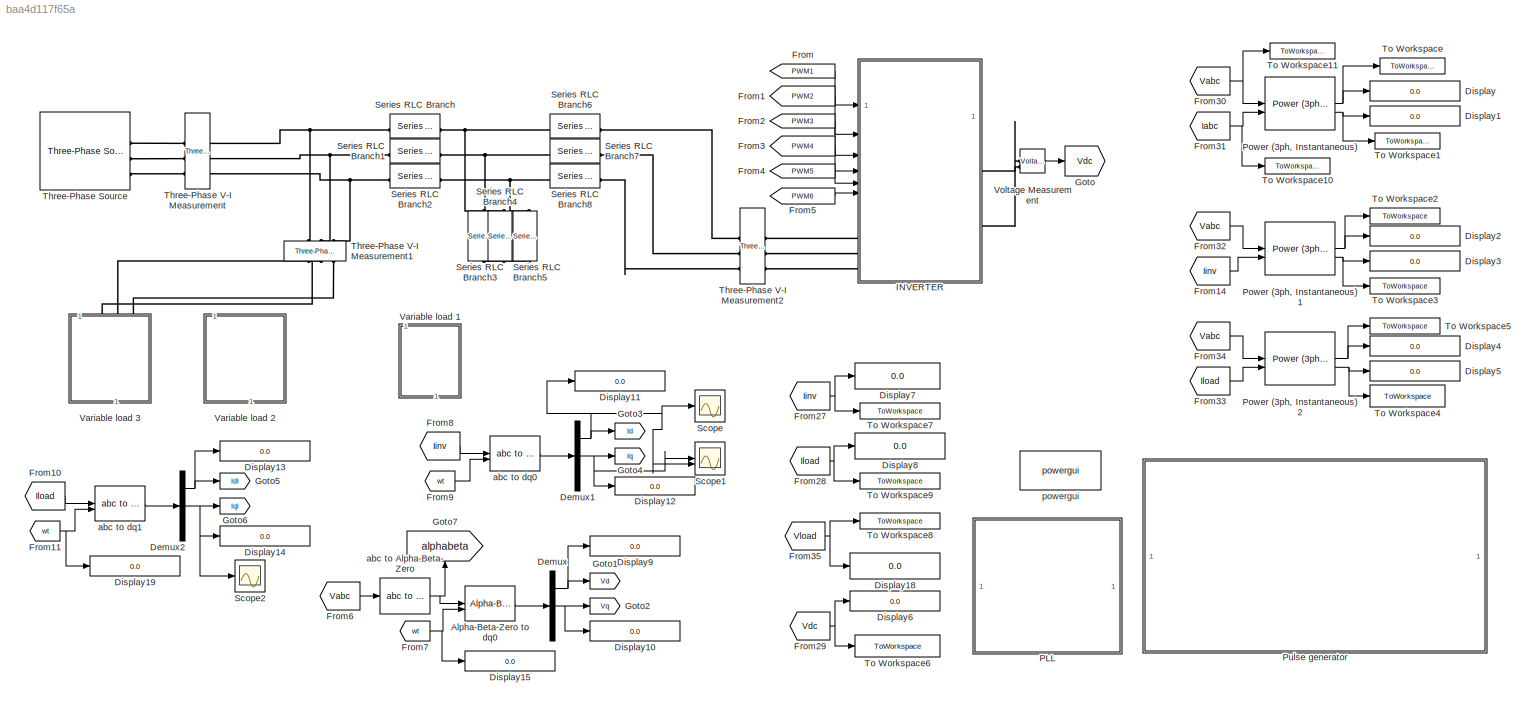
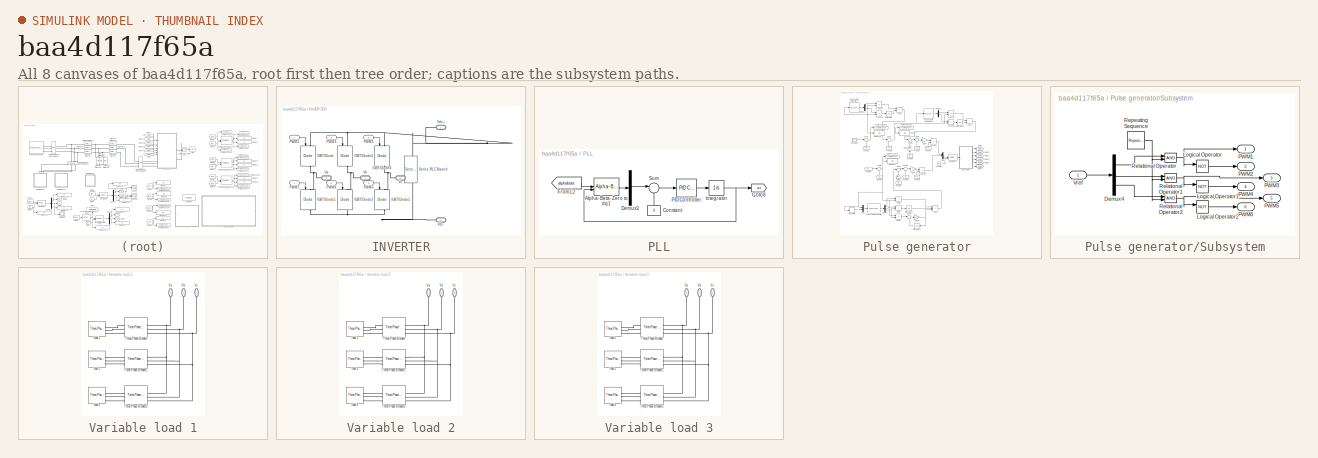
[diagram: thumbnail index - all 8 canvases of the model, root first then tree order]
MODEL slx_baa4d117f65a
KIND model
CONFIG AbsTol = auto
CONFIG EnableMultiTasking = off
CONFIG FixedStep = auto
CONFIG MaxStep = auto
CONFIG MinStep = auto
CONFIG RelTol = 1e-3
CONFIG SampleTimeConstraint = Unconstrained
CONFIG SolverName = VariableStepAuto
CONFIG StartTime = 0.0
CONFIG StopTime = 0.5
BLOCK [Reference] Alpha-Beta-Zero to dq0  REF=spsAlphaBetaZerotodq0Lib/Alpha-Beta-Zero
to dq0
  LibrarySourceBlock = sps_lib/Control/Alpha-Beta-Zero\nto dq0
  SourceBlock = spsAlphaBetaZerotodq0Lib/Alpha-Beta-Zero\nto dq0
  SourceType = Alpha-Beta-Zero to dq0 Transformation
BLOCK [Demux] Demux
  Outputs = 3
BLOCK [Demux] Demux1
  Outputs = 3
BLOCK [Demux] Demux2
  Outputs = 3
BLOCK [Display] Display
  Decimation = 1
BLOCK [Display] Display1
  Decimation = 1
BLOCK [Display] Display10
  Decimation = 1
BLOCK [Display] Display11
  Decimation = 1
BLOCK [Display] Display12
  Decimation = 1
BLOCK [Display] Display13
  Decimation = 1
BLOCK [Display] Display14
  Decimation = 1
BLOCK [Display] Display15
  Decimation = 1
BLOCK [Display] Display18
  Decimation = 1
BLOCK [Display] Display19
  Decimation = 1
BLOCK [Display] Display2
  Decimation = 1
BLOCK [Display] Display3
  Decimation = 1
BLOCK [Display] Display4
  Decimation = 1
BLOCK [Display] Display5
  Decimation = 1
BLOCK [Display] Display6
  Decimation = 1
BLOCK [Display] Display7
  Decimation = 1
BLOCK [Display] Display8
  Decimation = 1
BLOCK [Display] Display9
  Decimation = 1
BLOCK [From] From
  GotoTag = PWM1
  TagVisibility = global
BLOCK [From] From1
  GotoTag = PWM2
  TagVisibility = global
BLOCK [From] From10
  GotoTag = Iload
  TagVisibility = global
BLOCK [From] From11
  GotoTag = wt
  TagVisibility = global
BLOCK [From] From14
  GotoTag = Iinv
  TagVisibility = global
BLOCK [From] From2
  GotoTag = PWM3
  TagVisibility = global
BLOCK [From] From27
  GotoTag = Iinv
  TagVisibility = global
BLOCK [From] From28
  GotoTag = Iload
  TagVisibility = global
BLOCK [From] From29
  GotoTag = Vdc
  TagVisibility = global
BLOCK [From] From3
  GotoTag = PWM4
  TagVisibility = global
BLOCK [From] From30
  GotoTag = Vabc
  TagVisibility = global
BLOCK [From] From31
  GotoTag = Iabc
  TagVisibility = global
BLOCK [From] From32
  GotoTag = Vabc
  TagVisibility = global
BLOCK [From] From33
  GotoTag = Iload
  TagVisibility = global
BLOCK [From] From34
  GotoTag = Vabc
  TagVisibility = global
BLOCK [From] From35
  GotoTag = Vload
  TagVisibility = global
BLOCK [From] From4
  GotoTag = PWM5
  TagVisibility = global
BLOCK [From] From5
  GotoTag = PWM6
  TagVisibility = global
BLOCK [From] From6
  GotoTag = Vabc
  TagVisibility = global
BLOCK [From] From7
  GotoTag = wt
  TagVisibility = global
BLOCK [From] From8
  GotoTag = Iinv
  TagVisibility = global
BLOCK [From] From9
  GotoTag = wt
  TagVisibility = global
BLOCK [Goto] Goto
  GotoTag = Vdc
  TagVisibility = global
BLOCK [Goto] Goto1
  GotoTag = Vd
  TagVisibility = global
BLOCK [Goto] Goto2
  GotoTag = Vq
  TagVisibility = global
BLOCK [Goto] Goto3
  GotoTag = Id
  TagVisibility = global
BLOCK [Goto] Goto4
  GotoTag = Iq
  TagVisibility = global
BLOCK [Goto] Goto5
  GotoTag = Idl
  TagVisibility = global
BLOCK [Goto] Goto6
  GotoTag = Iql
  TagVisibility = global
BLOCK [Goto] Goto7
  GotoTag = alphabeta
  NameLocation = right
  TagVisibility = global
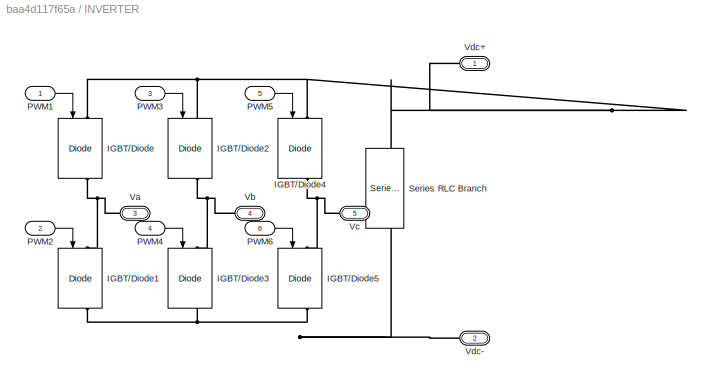
BLOCK [SubSystem] INVERTER
BLOCK [Reference] INVERTER/IGBT//Diode  REF=spsIGBTDiodeLib/IGBT//Diode
  LibrarySourceBlock = sps_lib/Power Electronics/IGBT//Diode
  NameLocation = left
  SourceBlock = spsIGBTDiodeLib/IGBT//Diode
  SourceType = IGBT/Diode
BLOCK [Reference] INVERTER/IGBT//Diode1  REF=spsIGBTDiodeLib/IGBT//Diode
  LibrarySourceBlock = sps_lib/Power Electronics/IGBT//Diode
  NameLocation = left
  SourceBlock = spsIGBTDiodeLib/IGBT//Diode
  SourceType = IGBT/Diode
BLOCK [Reference] INVERTER/IGBT//Diode2  REF=spsIGBTDiodeLib/IGBT//Diode
  LibrarySourceBlock = sps_lib/Power Electronics/IGBT//Diode
  NameLocation = left
  SourceBlock = spsIGBTDiodeLib/IGBT//Diode
  SourceType = IGBT/Diode
BLOCK [Reference] INVERTER/IGBT//Diode3  REF=spsIGBTDiodeLib/IGBT//Diode
  LibrarySourceBlock = sps_lib/Power Electronics/IGBT//Diode
  NameLocation = left
  SourceBlock = spsIGBTDiodeLib/IGBT//Diode
  SourceType = IGBT/Diode
BLOCK [Reference] INVERTER/IGBT//Diode4  REF=spsIGBTDiodeLib/IGBT//Diode
  LibrarySourceBlock = sps_lib/Power Electronics/IGBT//Diode
  NameLocation = left
  SourceBlock = spsIGBTDiodeLib/IGBT//Diode
  SourceType = IGBT/Diode
BLOCK [Reference] INVERTER/IGBT//Diode5  REF=spsIGBTDiodeLib/IGBT//Diode
  LibrarySourceBlock = sps_lib/Power Electronics/IGBT//Diode
  NameLocation = left
  SourceBlock = spsIGBTDiodeLib/IGBT//Diode
  SourceType = IGBT/Diode
BLOCK [Inport] INVERTER/PWM1
BLOCK [Inport] INVERTER/PWM2
  Port = 2
BLOCK [Inport] INVERTER/PWM3
  Port = 3
BLOCK [Inport] INVERTER/PWM4
  Port = 4
BLOCK [Inport] INVERTER/PWM5
  Port = 5
BLOCK [Inport] INVERTER/PWM6
  Port = 6
BLOCK [Reference] INVERTER/Series RLC Branch  REF=spsSeriesRLCBranchLib/Series RLC Branch
  LibrarySourceBlock = sps_lib/Passives/Series RLC Branch
  NameLocation = left
  SourceBlock = spsSeriesRLCBranchLib/Series RLC Branch
  SourceType = Series RLC Branch
BLOCK [PMIOPort] INVERTER/Va
  NameLocation = top
  Port = 3
  Side = Left
BLOCK [PMIOPort] INVERTER/Vb
  NameLocation = top
  Port = 4
  Side = Left
BLOCK [PMIOPort] INVERTER/Vc
  NameLocation = top
  Port = 5
  Side = Left
BLOCK [PMIOPort] INVERTER/Vdc+
  NameLocation = top
  Side = Right
BLOCK [PMIOPort] INVERTER/Vdc-
  NameLocation = top
  Port = 2
  Side = Right
BLOCK [SubSystem] PLL
BLOCK [Reference] PLL/Alpha-Beta-Zero to dq1  REF=spsAlphaBetaZerotodq0Lib/Alpha-Beta-Zero
to dq0
  LibrarySourceBlock = sps_lib/Control/Alpha-Beta-Zero\nto dq0
  SourceBlock = spsAlphaBetaZerotodq0Lib/Alpha-Beta-Zero\nto dq0
  SourceType = Alpha-Beta-Zero to dq0 Transformation
BLOCK [Constant] PLL/Constant
  NameLocation = right
  Value = 0
BLOCK [Demux] PLL/Demux3
  Outputs = 3
BLOCK [From] PLL/From12
  GotoTag = alphabeta
  TagVisibility = global
BLOCK [Goto] PLL/Goto8
  GotoTag = wt
  TagVisibility = global
BLOCK [Integrator] PLL/Integrator
BLOCK [Reference] PLL/PID Controller  REF=slpidlib/PID Controller
  LibrarySourceBlock = simulink/Continuous/PID Controller
  SourceBlock = slpidlib/PID Controller
  SourceType = PID 1dof
BLOCK [Sum] PLL/Sum
  Inputs = |-+
BLOCK [Reference] Power (3ph, Instantaneous)  REF=spsPower3phInstantaneousLib/Power
(3ph, Instantaneous)
  LibrarySourceBlock = sps_lib/Sensors and Measurements/Power\n(3ph, Instantaneous)
  SourceBlock = spsPower3phInstantaneousLib/Power\n(3ph, Instantaneous)
  SourceType = Power (3ph, Instantaneous)
BLOCK [Reference] Power (3ph, Instantaneous)1  REF=spsPower3phInstantaneousLib/Power
(3ph, Instantaneous)
  LibrarySourceBlock = sps_lib/Sensors and Measurements/Power\n(3ph, Instantaneous)
  SourceBlock = spsPower3phInstantaneousLib/Power\n(3ph, Instantaneous)
  SourceType = Power (3ph, Instantaneous)
BLOCK [Reference] Power (3ph, Instantaneous)2  REF=spsPower3phInstantaneousLib/Power
(3ph, Instantaneous)
  LibrarySourceBlock = sps_lib/Sensors and Measurements/Power\n(3ph, Instantaneous)
  SourceBlock = spsPower3phInstantaneousLib/Power\n(3ph, Instantaneous)
  SourceType = Power (3ph, Instantaneous)
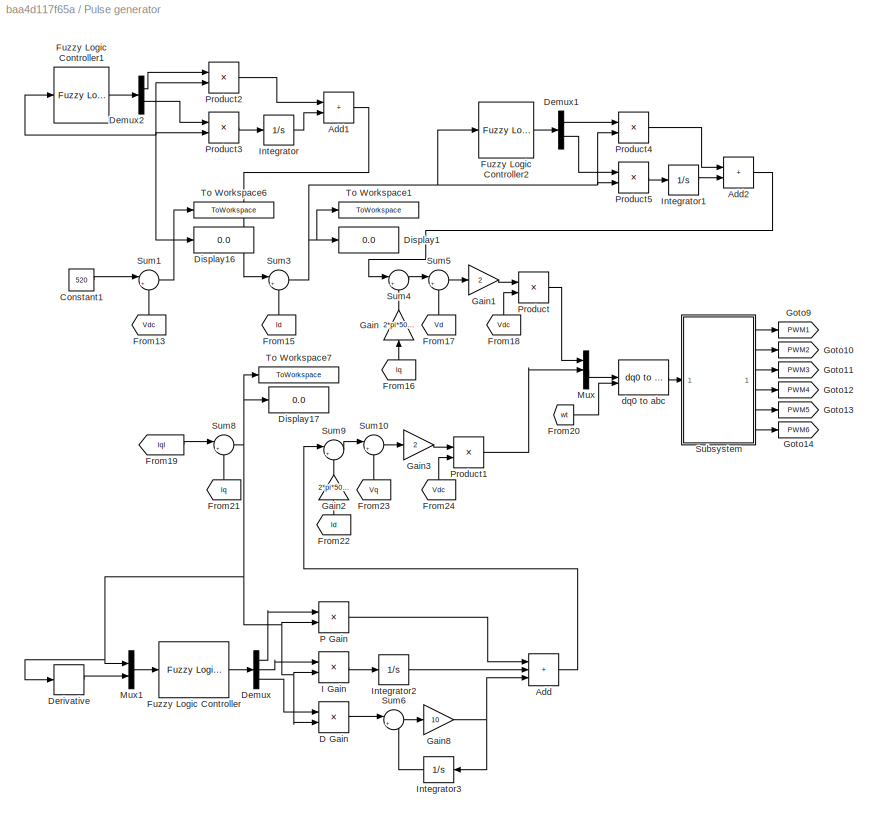
BLOCK [SubSystem] Pulse generator
BLOCK [Sum] Pulse generator/Add
  IconShape = rectangular
  Inputs = +++
BLOCK [Sum] Pulse generator/Add1
  IconShape = rectangular
BLOCK [Sum] Pulse generator/Add2
  IconShape = rectangular
BLOCK [Constant] Pulse generator/Constant1
  Value = 520
BLOCK [Product] Pulse generator/D Gain
BLOCK [Demux] Pulse generator/Demux
  Outputs = 3
BLOCK [Demux] Pulse generator/Demux1
  Outputs = 2
BLOCK [Demux] Pulse generator/Demux2
  Outputs = 2
BLOCK [Derivative] Pulse generator/Derivative
BLOCK [Display] Pulse generator/Display1
  Decimation = 1
BLOCK [Display] Pulse generator/Display16
  Decimation = 1
BLOCK [Display] Pulse generator/Display17
  Decimation = 1
BLOCK [From] Pulse generator/From13
  GotoTag = Vdc
  NameLocation = right
  TagVisibility = global
BLOCK [From] Pulse generator/From15
  GotoTag = Id
  NameLocation = right
  TagVisibility = global
BLOCK [From] Pulse generator/From16
  GotoTag = Iq
  NameLocation = right
  TagVisibility = global
BLOCK [From] Pulse generator/From17
  GotoTag = Vd
  NameLocation = right
  TagVisibility = global
BLOCK [From] Pulse generator/From18
  GotoTag = Vdc
  NameLocation = right
  TagVisibility = global
BLOCK [From] Pulse generator/From19
  GotoTag = Iql
  TagVisibility = global
BLOCK [From] Pulse generator/From20
  GotoTag = wt
  TagVisibility = global
BLOCK [From] Pulse generator/From21
  GotoTag = Iq
  NameLocation = right
  TagVisibility = global
BLOCK [From] Pulse generator/From22
  GotoTag = Id
  NameLocation = right
  TagVisibility = global
BLOCK [From] Pulse generator/From23
  GotoTag = Vq
  NameLocation = right
  TagVisibility = global
BLOCK [From] Pulse generator/From24
  GotoTag = Vdc
  NameLocation = right
  TagVisibility = global
BLOCK [Reference] Pulse generator/Fuzzy Logic Controller  REF=fuzblock/Fuzzy Logic   (lib defined in mdl_858b3b3e7478)
Controller
  SourceBlock = fuzblock/Fuzzy Logic \nController
  SourceType = Fuzzy Inference System
BLOCK [Reference] Pulse generator/Fuzzy Logic Controller1  REF=fuzblock/Fuzzy Logic   (lib defined in mdl_858b3b3e7478)
Controller
  SourceBlock = fuzblock/Fuzzy Logic \nController
  SourceType = Fuzzy Inference System
BLOCK [Reference] Pulse generator/Fuzzy Logic Controller2  REF=fuzblock/Fuzzy Logic   (lib defined in mdl_858b3b3e7478)
Controller
  SourceBlock = fuzblock/Fuzzy Logic \nController
  SourceType = Fuzzy Inference System
BLOCK [Gain] Pulse generator/Gain
  Gain = 2*pi*50*1000e-6
  NameLocation = right
BLOCK [Gain] Pulse generator/Gain1
  Gain = 2
BLOCK [Gain] Pulse generator/Gain2
  Gain = 2*pi*50*1000e-6
  NameLocation = right
BLOCK [Gain] Pulse generator/Gain3
  Gain = 2
BLOCK [Gain] Pulse generator/Gain8
  Gain = 10
BLOCK [Goto] Pulse generator/Goto10
  GotoTag = PWM2
  TagVisibility = global
BLOCK [Goto] Pulse generator/Goto11
  GotoTag = PWM3
  TagVisibility = global
BLOCK [Goto] Pulse generator/Goto12
  GotoTag = PWM4
  TagVisibility = global
BLOCK [Goto] Pulse generator/Goto13
  GotoTag = PWM5
  TagVisibility = global
BLOCK [Goto] Pulse generator/Goto14
  GotoTag = PWM6
  TagVisibility = global
BLOCK [Goto] Pulse generator/Goto9
  GotoTag = PWM1
  TagVisibility = global
BLOCK [Product] Pulse generator/I Gain
BLOCK [Integrator] Pulse generator/Integrator
BLOCK [Integrator] Pulse generator/Integrator1
BLOCK [Integrator] Pulse generator/Integrator2
BLOCK [Integrator] Pulse generator/Integrator3
  NameLocation = top
BLOCK [Mux] Pulse generator/Mux
  DisplayOption = bar
  Inputs = 3
BLOCK [Mux] Pulse generator/Mux1
  DisplayOption = bar
  Inputs = 2
BLOCK [Product] Pulse generator/P Gain
BLOCK [Product] Pulse generator/Product
  Inputs = */
BLOCK [Product] Pulse generator/Product1
  Inputs = */
BLOCK [Product] Pulse generator/Product2
BLOCK [Product] Pulse generator/Product3
BLOCK [Product] Pulse generator/Product4
BLOCK [Product] Pulse generator/Product5
BLOCK [SubSystem] Pulse generator/Subsystem
BLOCK [Demux] Pulse generator/Subsystem/Demux4
  Outputs = 3
BLOCK [Logic] Pulse generator/Subsystem/Logical Operator
  AllPortsSameDT = off
  Operator = NOT
  OutDataTypeStr = boolean
BLOCK [Logic] Pulse generator/Subsystem/Logical Operator1
  AllPortsSameDT = off
  Operator = NOT
  OutDataTypeStr = boolean
BLOCK [Logic] Pulse generator/Subsystem/Logical Operator2
  AllPortsSameDT = off
  Operator = NOT
  OutDataTypeStr = boolean
BLOCK [Outport] Pulse generator/Subsystem/PWM1
BLOCK [Outport] Pulse generator/Subsystem/PWM2
  Port = 2
BLOCK [Outport] Pulse generator/Subsystem/PWM3
  Port = 3
BLOCK [Outport] Pulse generator/Subsystem/PWM4
  Port = 4
BLOCK [Outport] Pulse generator/Subsystem/PWM5
  Port = 5
BLOCK [Outport] Pulse generator/Subsystem/PWM6
  Port = 6
BLOCK [RelationalOperator] Pulse generator/Subsystem/Relational Operator
  InputSameDT = off
  OutDataTypeStr = boolean
  RndMeth = Simplest
BLOCK [RelationalOperator] Pulse generator/Subsystem/Relational Operator1
  InputSameDT = off
  OutDataTypeStr = boolean
  RndMeth = Simplest
BLOCK [RelationalOperator] Pulse generator/Subsystem/Relational Operator2
  InputSameDT = off
  OutDataTypeStr = boolean
  RndMeth = Simplest
BLOCK [Reference] Pulse generator/Subsystem/Repeating Sequence  REF=simulink/Sources/Repeating
Sequence
  SourceBlock = simulink/Sources/Repeating\nSequence
  SourceType = Repeating table
BLOCK [Inport] Pulse generator/Subsystem/Vref
BLOCK [Sum] Pulse generator/Sum1
  Inputs = |+-
BLOCK [Sum] Pulse generator/Sum10
  Inputs = |++
BLOCK [Sum] Pulse generator/Sum3
  Inputs = |+-
BLOCK [Sum] Pulse generator/Sum4
  Inputs = |++
BLOCK [Sum] Pulse generator/Sum5
  Inputs = |++
BLOCK [Sum] Pulse generator/Sum6
  Inputs = |+-
BLOCK [Sum] Pulse generator/Sum8
  Inputs = |+-
BLOCK [Sum] Pulse generator/Sum9
  Inputs = |+-
BLOCK [ToWorkspace] Pulse generator/To Workspace1
  FixptAsFi = on
  MaxDataPoints = inf
  SampleTime = -1
  SaveFormat = Timeseries
  VariableName = Id_error
BLOCK [ToWorkspace] Pulse generator/To Workspace6
  FixptAsFi = on
  MaxDataPoints = inf
  SampleTime = -1
  SaveFormat = Timeseries
  VariableName = Dc_link_error
BLOCK [ToWorkspace] Pulse generator/To Workspace7
  FixptAsFi = on
  MaxDataPoints = inf
  SampleTime = -1
  SaveFormat = Timeseries
  VariableName = Iq_error
BLOCK [Reference] Pulse generator/dq0 to abc  REF=spsdq0toabcLib/dq0 to abc
  LibrarySourceBlock = sps_lib/Control/dq0 to abc
  SourceBlock = spsdq0toabcLib/dq0 to abc
  SourceType = dq0 to abc Transformation
BLOCK [Scope] Scope
  Floating = off
  NumInputPorts = 1
  ScopeSpecificationString = Simulink.scopes.TimeScopeBlockCfg('CurrentConfiguration', extmgr.ConfigurationSet(extmgr.Configuration('Core','General UI',true),extmgr.Configuration('Core','Source UI',true),extmgr.Configuration('Sources','WiredSimulink',true),extmgr.Configuration('Visuals','Time Domain',true,'SerializedDisplays',{struct('MinYLimReal','-724.57792','MaxYLimReal','1123.42236','YLabelReal','','MinYLimMag',' 0.00000'...<+1377ch>
BLOCK [Scope] Scope1
  Floating = off
  NumInputPorts = 2
  ScopeSpecificationString = Simulink.scopes.TimeScopeBlockCfg('CurrentConfiguration', extmgr.ConfigurationSet(extmgr.Configuration('Core','General UI',true),extmgr.Configuration('Core','Source UI',true),extmgr.Configuration('Sources','WiredSimulink',true,'DataLoggingVariableName','ScopeData4'),extmgr.Configuration('Visuals','Time Domain',true,'SerializedDisplays',{struct('MinYLimReal','-724.57792','MaxYLimReal','1123.42236',...<+1429ch>
BLOCK [Scope] Scope2
  Floating = off
  NumInputPorts = 1
  ScopeSpecificationString = Simulink.scopes.TimeScopeBlockCfg('CurrentConfiguration', extmgr.ConfigurationSet(extmgr.Configuration('Core','General UI',true),extmgr.Configuration('Core','Source UI',true),extmgr.Configuration('Sources','WiredSimulink',true,'DataLoggingVariableName','ScopeData1'),extmgr.Configuration('Visuals','Time Domain',true,'SerializedDisplays',{struct('MinYLimReal','-1000','MaxYLimReal','1000','YLabelReal...<+1384ch>
BLOCK [Reference] Series RLC Branch  REF=spsSeriesRLCBranchLib/Series RLC Branch
  LibrarySourceBlock = sps_lib/Passives/Series RLC Branch
  SourceBlock = spsSeriesRLCBranchLib/Series RLC Branch
  SourceType = Series RLC Branch
BLOCK [Reference] Series RLC Branch1  REF=spsSeriesRLCBranchLib/Series RLC Branch
  LibrarySourceBlock = sps_lib/Passives/Series RLC Branch
  SourceBlock = spsSeriesRLCBranchLib/Series RLC Branch
  SourceType = Series RLC Branch
BLOCK [Reference] Series RLC Branch2  REF=spsSeriesRLCBranchLib/Series RLC Branch
  LibrarySourceBlock = sps_lib/Passives/Series RLC Branch
  SourceBlock = spsSeriesRLCBranchLib/Series RLC Branch
  SourceType = Series RLC Branch
BLOCK [Reference] Series RLC Branch3  REF=spsSeriesRLCBranchLib/Series RLC Branch
  LibrarySourceBlock = sps_lib/Passives/Series RLC Branch
  NameLocation = left
  SourceBlock = spsSeriesRLCBranchLib/Series RLC Branch
  SourceType = Series RLC Branch
BLOCK [Reference] Series RLC Branch4  REF=spsSeriesRLCBranchLib/Series RLC Branch
  LibrarySourceBlock = sps_lib/Passives/Series RLC Branch
  NameLocation = left
  SourceBlock = spsSeriesRLCBranchLib/Series RLC Branch
  SourceType = Series RLC Branch
BLOCK [Reference] Series RLC Branch5  REF=spsSeriesRLCBranchLib/Series RLC Branch
  LibrarySourceBlock = sps_lib/Passives/Series RLC Branch
  NameLocation = left
  SourceBlock = spsSeriesRLCBranchLib/Series RLC Branch
  SourceType = Series RLC Branch
BLOCK [Reference] Series RLC Branch6  REF=spsSeriesRLCBranchLib/Series RLC Branch
  LibrarySourceBlock = sps_lib/Passives/Series RLC Branch
  SourceBlock = spsSeriesRLCBranchLib/Series RLC Branch
  SourceType = Series RLC Branch
BLOCK [Reference] Series RLC Branch7  REF=spsSeriesRLCBranchLib/Series RLC Branch
  LibrarySourceBlock = sps_lib/Passives/Series RLC Branch
  SourceBlock = spsSeriesRLCBranchLib/Series RLC Branch
  SourceType = Series RLC Branch
BLOCK [Reference] Series RLC Branch8  REF=spsSeriesRLCBranchLib/Series RLC Branch
  LibrarySourceBlock = sps_lib/Passives/Series RLC Branch
  SourceBlock = spsSeriesRLCBranchLib/Series RLC Branch
  SourceType = Series RLC Branch
BLOCK [Reference] Three-Phase Source  REF=spsThreePhaseSourceLib/Three-Phase Source
  LibrarySourceBlock = sps_lib/Sources/Three-Phase Source
  SourceBlock = spsThreePhaseSourceLib/Three-Phase Source
  SourceType = Three-Phase Source
BLOCK [Reference] Three-Phase V-I Measurement  REF=spsThreePhaseVIMeasurementLib/Three-Phase
V-I Measurement
  LibrarySourceBlock = sps_lib/Sensors and Measurements/Three-Phase\nV-I Measurement
  SourceBlock = spsThreePhaseVIMeasurementLib/Three-Phase\nV-I Measurement
  SourceType = Three-Phase VI Measurement
BLOCK [Reference] Three-Phase V-I Measurement1  REF=spsThreePhaseVIMeasurementLib/Three-Phase
V-I Measurement
  LibrarySourceBlock = sps_lib/Sensors and Measurements/Three-Phase\nV-I Measurement
  NameLocation = right
  SourceBlock = spsThreePhaseVIMeasurementLib/Three-Phase\nV-I Measurement
  SourceType = Three-Phase VI Measurement
BLOCK [Reference] Three-Phase V-I Measurement2  REF=spsThreePhaseVIMeasurementLib/Three-Phase
V-I Measurement
  LibrarySourceBlock = sps_lib/Sensors and Measurements/Three-Phase\nV-I Measurement
  SourceBlock = spsThreePhaseVIMeasurementLib/Three-Phase\nV-I Measurement
  SourceType = Three-Phase VI Measurement
BLOCK [ToWorkspace] To Workspace
  FixptAsFi = on
  MaxDataPoints = inf
  SampleTime = -1
  SaveFormat = Timeseries
  VariableName = P_supply
BLOCK [ToWorkspace] To Workspace1
  FixptAsFi = on
  MaxDataPoints = inf
  SampleTime = -1
  SaveFormat = Timeseries
  VariableName = Q_supply
BLOCK [ToWorkspace] To Workspace10
  FixptAsFi = on
  MaxDataPoints = inf
  SampleTime = -1
  SaveFormat = Timeseries
  VariableName = Iabc
BLOCK [ToWorkspace] To Workspace11
  FixptAsFi = on
  MaxDataPoints = inf
  SampleTime = -1
  SaveFormat = Timeseries
  VariableName = Vabc
BLOCK [ToWorkspace] To Workspace2
  FixptAsFi = on
  MaxDataPoints = inf
  SampleTime = -1
  SaveFormat = Timeseries
  VariableName = P_inv
BLOCK [ToWorkspace] To Workspace3
  FixptAsFi = on
  MaxDataPoints = inf
  SampleTime = -1
  SaveFormat = Timeseries
  VariableName = Q_inv
BLOCK [ToWorkspace] To Workspace4
  FixptAsFi = on
  MaxDataPoints = inf
  SampleTime = -1
  SaveFormat = Timeseries
  VariableName = Q_load
BLOCK [ToWorkspace] To Workspace5
  FixptAsFi = on
  MaxDataPoints = inf
  SampleTime = -1
  SaveFormat = Timeseries
  VariableName = P_load
BLOCK [ToWorkspace] To Workspace6
  FixptAsFi = on
  MaxDataPoints = inf
  SampleTime = -1
  SaveFormat = Timeseries
  VariableName = Vdc
BLOCK [ToWorkspace] To Workspace7
  FixptAsFi = on
  MaxDataPoints = inf
  SampleTime = -1
  SaveFormat = Timeseries
  VariableName = Iinv
BLOCK [ToWorkspace] To Workspace8
  FixptAsFi = on
  MaxDataPoints = inf
  SampleTime = -1
  SaveFormat = Timeseries
  VariableName = Vload
BLOCK [ToWorkspace] To Workspace9
  FixptAsFi = on
  MaxDataPoints = inf
  SampleTime = -1
  SaveFormat = Timeseries
  VariableName = Iload
BLOCK [SubSystem] Variable load 1
  NameLocation = right
BLOCK [Reference] Variable load 1/Three-Phase Breaker  REF=spsThreePhaseBreakerLib/Three-Phase Breaker
  LibrarySourceBlock = sps_lib/Power Grid Elements/Three-Phase Breaker
  SourceBlock = spsThreePhaseBreakerLib/Three-Phase Breaker
  SourceType = Three-Phase Breaker
BLOCK [Reference] Variable load 1/Three-Phase Breaker1  REF=spsThreePhaseBreakerLib/Three-Phase Breaker
  LibrarySourceBlock = sps_lib/Power Grid Elements/Three-Phase Breaker
  SourceBlock = spsThreePhaseBreakerLib/Three-Phase Breaker
  SourceType = Three-Phase Breaker
BLOCK [Reference] Variable load 1/Three-Phase Breaker2  REF=spsThreePhaseBreakerLib/Three-Phase Breaker
  LibrarySourceBlock = sps_lib/Power Grid Elements/Three-Phase Breaker
  SourceBlock = spsThreePhaseBreakerLib/Three-Phase Breaker
  SourceType = Three-Phase Breaker
BLOCK [PMIOPort] Variable load 1/Va
  NameLocation = left
  Side = Left
BLOCK [PMIOPort] Variable load 1/Vb
  NameLocation = left
  Port = 2
  Side = Left
BLOCK [PMIOPort] Variable load 1/Vc
  NameLocation = left
  Port = 3
  Side = Left
BLOCK [Reference] Variable load 1/load 1  REF=spsThreePhaseSeriesRLCLoadLib/Three-Phase
Series RLC Load
  AttributesFormatString = \n
  LibrarySourceBlock = sps_lib/Passives/Three-Phase\nSeries RLC Load
  NameLocation = top
  SourceBlock = spsThreePhaseSeriesRLCLoadLib/Three-Phase\nSeries RLC Load
  SourceType = Three-Phase Series RLC Load
BLOCK [Reference] Variable load 1/load 2  REF=spsThreePhaseSeriesRLCLoadLib/Three-Phase
Series RLC Load
  AttributesFormatString = \n
  LibrarySourceBlock = sps_lib/Passives/Three-Phase\nSeries RLC Load
  NameLocation = top
  SourceBlock = spsThreePhaseSeriesRLCLoadLib/Three-Phase\nSeries RLC Load
  SourceType = Three-Phase Series RLC Load
BLOCK [Reference] Variable load 1/load 3  REF=spsThreePhaseSeriesRLCLoadLib/Three-Phase
Series RLC Load
  AttributesFormatString = \n
  LibrarySourceBlock = sps_lib/Passives/Three-Phase\nSeries RLC Load
  NameLocation = top
  SourceBlock = spsThreePhaseSeriesRLCLoadLib/Three-Phase\nSeries RLC Load
  SourceType = Three-Phase Series RLC Load
BLOCK [SubSystem] Variable load 2
  NameLocation = right
BLOCK [Reference] Variable load 2/Three-Phase Breaker  REF=spsThreePhaseBreakerLib/Three-Phase Breaker
  LibrarySourceBlock = sps_lib/Power Grid Elements/Three-Phase Breaker
  SourceBlock = spsThreePhaseBreakerLib/Three-Phase Breaker
  SourceType = Three-Phase Breaker
BLOCK [Reference] Variable load 2/Three-Phase Breaker1  REF=spsThreePhaseBreakerLib/Three-Phase Breaker
  LibrarySourceBlock = sps_lib/Power Grid Elements/Three-Phase Breaker
  SourceBlock = spsThreePhaseBreakerLib/Three-Phase Breaker
  SourceType = Three-Phase Breaker
BLOCK [Reference] Variable load 2/Three-Phase Breaker2  REF=spsThreePhaseBreakerLib/Three-Phase Breaker
  LibrarySourceBlock = sps_lib/Power Grid Elements/Three-Phase Breaker
  SourceBlock = spsThreePhaseBreakerLib/Three-Phase Breaker
  SourceType = Three-Phase Breaker
BLOCK [PMIOPort] Variable load 2/Va
  NameLocation = left
  Side = Left
BLOCK [PMIOPort] Variable load 2/Vb
  NameLocation = left
  Port = 2
  Side = Left
BLOCK [PMIOPort] Variable load 2/Vc
  NameLocation = left
  Port = 3
  Side = Left
BLOCK [Reference] Variable load 2/load 1  REF=spsThreePhaseSeriesRLCLoadLib/Three-Phase
Series RLC Load
  AttributesFormatString = \n
  LibrarySourceBlock = sps_lib/Passives/Three-Phase\nSeries RLC Load
  NameLocation = top
  SourceBlock = spsThreePhaseSeriesRLCLoadLib/Three-Phase\nSeries RLC Load
  SourceType = Three-Phase Series RLC Load
BLOCK [Reference] Variable load 2/load 2  REF=spsThreePhaseSeriesRLCLoadLib/Three-Phase
Series RLC Load
  AttributesFormatString = \n
  LibrarySourceBlock = sps_lib/Passives/Three-Phase\nSeries RLC Load
  NameLocation = top
  SourceBlock = spsThreePhaseSeriesRLCLoadLib/Three-Phase\nSeries RLC Load
  SourceType = Three-Phase Series RLC Load
BLOCK [Reference] Variable load 2/load 3  REF=spsThreePhaseSeriesRLCLoadLib/Three-Phase
Series RLC Load
  AttributesFormatString = \n
  LibrarySourceBlock = sps_lib/Passives/Three-Phase\nSeries RLC Load
  NameLocation = top
  SourceBlock = spsThreePhaseSeriesRLCLoadLib/Three-Phase\nSeries RLC Load
  SourceType = Three-Phase Series RLC Load
BLOCK [SubSystem] Variable load 3
  NameLocation = right
BLOCK [Reference] Variable load 3/Three-Phase Breaker  REF=spsThreePhaseBreakerLib/Three-Phase Breaker
  LibrarySourceBlock = sps_lib/Power Grid Elements/Three-Phase Breaker
  SourceBlock = spsThreePhaseBreakerLib/Three-Phase Breaker
  SourceType = Three-Phase Breaker
BLOCK [Reference] Variable load 3/Three-Phase Breaker1  REF=spsThreePhaseBreakerLib/Three-Phase Breaker
  LibrarySourceBlock = sps_lib/Power Grid Elements/Three-Phase Breaker
  SourceBlock = spsThreePhaseBreakerLib/Three-Phase Breaker
  SourceType = Three-Phase Breaker
BLOCK [Reference] Variable load 3/Three-Phase Breaker2  REF=spsThreePhaseBreakerLib/Three-Phase Breaker
  LibrarySourceBlock = sps_lib/Power Grid Elements/Three-Phase Breaker
  SourceBlock = spsThreePhaseBreakerLib/Three-Phase Breaker
  SourceType = Three-Phase Breaker
BLOCK [PMIOPort] Variable load 3/Va
  NameLocation = left
  Side = Left
BLOCK [PMIOPort] Variable load 3/Vb
  NameLocation = left
  Port = 2
  Side = Left
BLOCK [PMIOPort] Variable load 3/Vc
  NameLocation = left
  Port = 3
  Side = Left
BLOCK [Reference] Variable load 3/load 1  REF=spsThreePhaseSeriesRLCLoadLib/Three-Phase
Series RLC Load
  AttributesFormatString = \n
  LibrarySourceBlock = sps_lib/Passives/Three-Phase\nSeries RLC Load
  NameLocation = top
  SourceBlock = spsThreePhaseSeriesRLCLoadLib/Three-Phase\nSeries RLC Load
  SourceType = Three-Phase Series RLC Load
BLOCK [Reference] Variable load 3/load 2  REF=spsThreePhaseSeriesRLCLoadLib/Three-Phase
Series RLC Load
  AttributesFormatString = \n
  LibrarySourceBlock = sps_lib/Passives/Three-Phase\nSeries RLC Load
  NameLocation = top
  SourceBlock = spsThreePhaseSeriesRLCLoadLib/Three-Phase\nSeries RLC Load
  SourceType = Three-Phase Series RLC Load
BLOCK [Reference] Variable load 3/load 3  REF=spsThreePhaseSeriesRLCLoadLib/Three-Phase
Series RLC Load
  AttributesFormatString = \n
  LibrarySourceBlock = sps_lib/Passives/Three-Phase\nSeries RLC Load
  NameLocation = top
  SourceBlock = spsThreePhaseSeriesRLCLoadLib/Three-Phase\nSeries RLC Load
  SourceType = Three-Phase Series RLC Load
BLOCK [Reference] Voltage Measurement  REF=spsVoltageMeasurementLib/Voltage Measurement
  LibrarySourceBlock = sps_lib/Sensors and Measurements/Voltage Measurement
  SourceBlock = spsVoltageMeasurementLib/Voltage Measurement
  SourceType = Voltage Measurement
  UserDataPersistent = on
BLOCK [Reference] abc to Alpha-Beta-Zero  REF=spsabctoAlphaBetaZeroLib/abc to
Alpha-Beta-Zero
  LibrarySourceBlock = sps_lib/Control/abc to\nAlpha-Beta-Zero
  SourceBlock = spsabctoAlphaBetaZeroLib/abc to\nAlpha-Beta-Zero
  SourceType = abc to Alpha-Beta-Zero Transformation
BLOCK [Reference] abc to dq0  REF=spsabctodq0Lib/abc to dq0
  LibrarySourceBlock = sps_lib/Control/abc to dq0
  SourceBlock = spsabctodq0Lib/abc to dq0
  SourceType = abc to dq0 Transformation
BLOCK [Reference] abc to dq1  REF=spsabctodq0Lib/abc to dq0
  LibrarySourceBlock = sps_lib/Control/abc to dq0
  SourceBlock = spsabctodq0Lib/abc to dq0
  SourceType = abc to dq0 Transformation
BLOCK [Reference] powergui  REF=sps_lib/powergui
  Priority = 1
  SourceBlock = sps_lib/powergui
  SourceType = PSB option menu block
LINE Alpha-Beta-Zero to dq0:1 -> Demux:1
NET Demux1:1 -> Display11:1, Goto3:1, Scope1:2, Scope:1
NET Demux1:2 -> Display12:1, Goto4:1, Scope1:1
NET Demux2:1 -> Display13:1, Goto5:1
NET Demux2:2 -> Display14:1, Goto6:1, Scope2:1
NET Demux:1 -> Display9:1, Goto1:1
NET Demux:2 -> Display10:1, Goto2:1
LINE From10:1 -> abc to dq1:1
NET From11:1 -> Display19:1, abc to dq1:2
LINE From14:1 -> Power (3ph, Instantaneous)1:2
LINE From1:1 -> INVERTER:2
NET From27:1 -> Display7:1, To Workspace7:1
NET From28:1 -> Display8:1, To Workspace9:1
NET From29:1 -> Display6:1, To Workspace6:1
LINE From2:1 -> INVERTER:3
NET From30:1 -> Power (3ph, Instantaneous):1, To Workspace11:1
NET From31:1 -> Power (3ph, Instantaneous):2, To Workspace10:1
LINE From32:1 -> Power (3ph, Instantaneous)1:1
LINE From33:1 -> Power (3ph, Instantaneous)2:2
LINE From34:1 -> Power (3ph, Instantaneous)2:1
NET From35:1 -> Display18:1, To Workspace8:1
LINE From3:1 -> INVERTER:4
LINE From4:1 -> INVERTER:5
LINE From5:1 -> INVERTER:6
LINE From6:1 -> abc to Alpha-Beta-Zero:1
NET From7:1 -> Alpha-Beta-Zero to dq0:2, Display15:1
LINE From8:1 -> abc to dq0:1
LINE From9:1 -> abc to dq0:2
LINE From:1 -> INVERTER:1
LINE INVERTER/PWM1:1 -> INVERTER/IGBT//Diode:1
LINE INVERTER/PWM2:1 -> INVERTER/IGBT//Diode1:1
LINE INVERTER/PWM3:1 -> INVERTER/IGBT//Diode2:1
LINE INVERTER/PWM4:1 -> INVERTER/IGBT//Diode3:1
LINE INVERTER/PWM5:1 -> INVERTER/IGBT//Diode4:1
LINE INVERTER/PWM6:1 -> INVERTER/IGBT//Diode5:1
LINE PLL/Alpha-Beta-Zero to dq1:1 -> PLL/Demux3:1
LINE PLL/Constant:1 -> PLL/Sum:2
LINE PLL/Demux3:2 -> PLL/Sum:1
LINE PLL/From12:1 -> PLL/Alpha-Beta-Zero to dq1:1
NET PLL/Integrator:1 -> PLL/Alpha-Beta-Zero to dq1:2, PLL/Goto8:1
LINE PLL/PID Controller:1 -> PLL/Integrator:1
LINE PLL/Sum:1 -> PLL/PID Controller:1
NET Power (3ph, Instantaneous)1:1 -> Display2:1, To Workspace2:1
NET Power (3ph, Instantaneous)1:2 -> Display3:1, To Workspace3:1
NET Power (3ph, Instantaneous)2:1 -> Display4:1, To Workspace5:1
NET Power (3ph, Instantaneous)2:2 -> Display5:1, To Workspace4:1
NET Power (3ph, Instantaneous):1 -> Display:1, To Workspace:1
NET Power (3ph, Instantaneous):2 -> Display1:1, To Workspace1:1
LINE Pulse generator/Add1:1 -> Pulse generator/Sum3:1
LINE Pulse generator/Add2:1 -> Pulse generator/Sum4:1
LINE Pulse generator/Add:1 -> Pulse generator/Sum9:1
LINE Pulse generator/Constant1:1 -> Pulse generator/Sum1:1
LINE Pulse generator/D Gain:1 -> Pulse generator/Sum6:1
LINE Pulse generator/Demux1:1 -> Pulse generator/Product4:1
LINE Pulse generator/Demux1:2 -> Pulse generator/Product5:1
LINE Pulse generator/Demux2:1 -> Pulse generator/Product2:1
LINE Pulse generator/Demux2:2 -> Pulse generator/Product3:1
LINE Pulse generator/Demux:1 -> Pulse generator/P Gain:1
LINE Pulse generator/Demux:2 -> Pulse generator/I Gain:1
LINE Pulse generator/Demux:3 -> Pulse generator/D Gain:1
LINE Pulse generator/Derivative:1 -> Pulse generator/Mux1:2
LINE Pulse generator/From13:1 -> Pulse generator/Sum1:2
LINE Pulse generator/From15:1 -> Pulse generator/Sum3:2
LINE Pulse generator/From16:1 -> Pulse generator/Gain:1
LINE Pulse generator/From17:1 -> Pulse generator/Sum5:2
LINE Pulse generator/From18:1 -> Pulse generator/Product:2
LINE Pulse generator/From19:1 -> Pulse generator/Sum8:1
LINE Pulse generator/From20:1 -> Pulse generator/dq0 to abc:2
LINE Pulse generator/From21:1 -> Pulse generator/Sum8:2
LINE Pulse generator/From22:1 -> Pulse generator/Gain2:1
LINE Pulse generator/From23:1 -> Pulse generator/Sum10:2
LINE Pulse generator/From24:1 -> Pulse generator/Product1:2
LINE Pulse generator/Fuzzy Logic Controller1:1 -> Pulse generator/Demux2:1
LINE Pulse generator/Fuzzy Logic Controller2:1 -> Pulse generator/Demux1:1
LINE Pulse generator/Fuzzy Logic Controller:1 -> Pulse generator/Demux:1
LINE Pulse generator/Gain1:1 -> Pulse generator/Product:1
LINE Pulse generator/Gain2:1 -> Pulse generator/Sum9:2
LINE Pulse generator/Gain3:1 -> Pulse generator/Product1:1
NET Pulse generator/Gain8:1 -> Pulse generator/Add:3, Pulse generator/Integrator3:1
LINE Pulse generator/Gain:1 -> Pulse generator/Sum4:2
LINE Pulse generator/I Gain:1 -> Pulse generator/Integrator2:1
LINE Pulse generator/Integrator1:1 -> Pulse generator/Add2:2
LINE Pulse generator/Integrator2:1 -> Pulse generator/Add:2
LINE Pulse generator/Integrator3:1 -> Pulse generator/Sum6:2
LINE Pulse generator/Integrator:1 -> Pulse generator/Add1:2
LINE Pulse generator/Mux1:1 -> Pulse generator/Fuzzy Logic Controller:1
LINE Pulse generator/Mux:1 -> Pulse generator/dq0 to abc:1
LINE Pulse generator/P Gain:1 -> Pulse generator/Add:1
LINE Pulse generator/Product1:1 -> Pulse generator/Mux:2
LINE Pulse generator/Product2:1 -> Pulse generator/Add1:1
LINE Pulse generator/Product3:1 -> Pulse generator/Integrator:1
LINE Pulse generator/Product4:1 -> Pulse generator/Add2:1
LINE Pulse generator/Product5:1 -> Pulse generator/Integrator1:1
LINE Pulse generator/Product:1 -> Pulse generator/Mux:1
LINE Pulse generator/Subsystem/Demux4:1 -> Pulse generator/Subsystem/Relational Operator:1
LINE Pulse generator/Subsystem/Demux4:2 -> Pulse generator/Subsystem/Relational Operator1:1
LINE Pulse generator/Subsystem/Demux4:3 -> Pulse generator/Subsystem/Relational Operator2:1
LINE Pulse generator/Subsystem/Logical Operator1:1 -> Pulse generator/Subsystem/PWM4:1
LINE Pulse generator/Subsystem/Logical Operator2:1 -> Pulse generator/Subsystem/PWM6:1
LINE Pulse generator/Subsystem/Logical Operator:1 -> Pulse generator/Subsystem/PWM2:1
NET Pulse generator/Subsystem/Relational Operator1:1 -> Pulse generator/Subsystem/Logical Operator1:1, Pulse generator/Subsystem/PWM3:1
NET Pulse generator/Subsystem/Relational Operator2:1 -> Pulse generator/Subsystem/Logical Operator2:1, Pulse generator/Subsystem/PWM5:1
NET Pulse generator/Subsystem/Relational Operator:1 -> Pulse generator/Subsystem/Logical Operator:1, Pulse generator/Subsystem/PWM1:1
NET Pulse generator/Subsystem/Repeating Sequence:1 -> Pulse generator/Subsystem/Relational Operator1:2, Pulse generator/Subsystem/Relational Operator2:2, Pulse generator/Subsystem/Relational Operator:2
LINE Pulse generator/Subsystem/Vref:1 -> Pulse generator/Subsystem/Demux4:1
LINE Pulse generator/Subsystem:1 -> Pulse generator/Goto9:1
LINE Pulse generator/Subsystem:2 -> Pulse generator/Goto10:1
LINE Pulse generator/Subsystem:3 -> Pulse generator/Goto11:1
LINE Pulse generator/Subsystem:4 -> Pulse generator/Goto12:1
LINE Pulse generator/Subsystem:5 -> Pulse generator/Goto13:1
LINE Pulse generator/Subsystem:6 -> Pulse generator/Goto14:1
LINE Pulse generator/Sum10:1 -> Pulse generator/Gain3:1
NET Pulse generator/Sum1:1 -> Pulse generator/Display16:1, Pulse generator/Fuzzy Logic Controller1:1, Pulse generator/Product2:2, Pulse generator/Product3:2, Pulse generator/To Workspace6:1
NET Pulse generator/Sum3:1 -> Pulse generator/Display1:1, Pulse generator/Fuzzy Logic Controller2:1, Pulse generator/Product4:2, Pulse generator/Product5:2, Pulse generator/To Workspace1:1
LINE Pulse generator/Sum4:1 -> Pulse generator/Sum5:1
LINE Pulse generator/Sum5:1 -> Pulse generator/Gain1:1
LINE Pulse generator/Sum6:1 -> Pulse generator/Gain8:1
NET Pulse generator/Sum8:1 -> Pulse generator/D Gain:2, Pulse generator/Derivative:1, Pulse generator/Display17:1, Pulse generator/I Gain:2, Pulse generator/Mux1:1, Pulse generator/P Gain:2, Pulse generator/To Workspace7:1
LINE Pulse generator/Sum9:1 -> Pulse generator/Sum10:1
LINE Pulse generator/dq0 to abc:1 -> Pulse generator/Subsystem:1
LINE Voltage Measurement:1 -> Goto:1
NET abc to Alpha-Beta-Zero:1 -> Alpha-Beta-Zero to dq0:1, Goto7:1
LINE abc to dq0:1 -> Demux1:1
LINE abc to dq1:1 -> Demux2:1
PNET net1: INVERTER/IGBT//Diode1:LConn1 -- INVERTER/IGBT//Diode:RConn1 -- INVERTER/Va:RConn1
PNET net2: INVERTER/IGBT//Diode1:RConn1 -- INVERTER/IGBT//Diode3:RConn1 -- INVERTER/IGBT//Diode5:RConn1 -- INVERTER/Series RLC Branch:RConn1 -- INVERTER/Vdc-:RConn1
PNET net3: INVERTER/IGBT//Diode2:LConn1 -- INVERTER/IGBT//Diode4:LConn1 -- INVERTER/IGBT//Diode:LConn1 -- INVERTER/Series RLC Branch:LConn1 -- INVERTER/Vdc+:RConn1
PNET net4: INVERTER/IGBT//Diode2:RConn1 -- INVERTER/IGBT//Diode3:LConn1 -- INVERTER/Vb:RConn1
PNET net5: INVERTER/IGBT//Diode4:RConn1 -- INVERTER/IGBT//Diode5:LConn1 -- INVERTER/Vc:RConn1
PLINE INVERTER:LConn1 -- Three-Phase V-I Measurement2:LConn1
PLINE INVERTER:LConn2 -- Three-Phase V-I Measurement2:LConn2
PLINE INVERTER:LConn3 -- Three-Phase V-I Measurement2:LConn3
PLINE INVERTER:RConn1 -- Voltage Measurement:LConn1
PLINE INVERTER:RConn2 -- Voltage Measurement:LConn2
PNET net6: Series RLC Branch1:LConn1 -- Three-Phase V-I Measurement1:LConn2 -- Three-Phase V-I Measurement:RConn2
PNET net7: Series RLC Branch1:RConn1 -- Series RLC Branch4:LConn1 -- Series RLC Branch7:LConn1
PNET net8: Series RLC Branch2:LConn1 -- Three-Phase V-I Measurement1:LConn3 -- Three-Phase V-I Measurement:RConn3
PNET net9: Series RLC Branch2:RConn1 -- Series RLC Branch5:LConn1 -- Series RLC Branch8:LConn1
PNET net10: Series RLC Branch3:LConn1 -- Series RLC Branch6:LConn1 -- Series RLC Branch:RConn1
PNET net11: Series RLC Branch3:RConn1 -- Series RLC Branch4:RConn1 -- Series RLC Branch5:RConn1
PLINE Series RLC Branch6:RConn1 -- Three-Phase V-I Measurement2:RConn1
PLINE Series RLC Branch7:RConn1 -- Three-Phase V-I Measurement2:RConn2
PLINE Series RLC Branch8:RConn1 -- Three-Phase V-I Measurement2:RConn3
PNET net12: Series RLC Branch:LConn1 -- Three-Phase V-I Measurement1:LConn1 -- Three-Phase V-I Measurement:RConn1
PLINE Three-Phase Source:RConn1 -- Three-Phase V-I Measurement:LConn1
PLINE Three-Phase Source:RConn2 -- Three-Phase V-I Measurement:LConn2
PLINE Three-Phase Source:RConn3 -- Three-Phase V-I Measurement:LConn3
PLINE Three-Phase V-I Measurement1:RConn1 -- Variable load 3:LConn1
PLINE Three-Phase V-I Measurement1:RConn2 -- Variable load 3:LConn2
PLINE Three-Phase V-I Measurement1:RConn3 -- Variable load 3:LConn3
PLINE Variable load 1/Three-Phase Breaker1:LConn1 -- Variable load 1/load 2:LConn1
PLINE Variable load 1/Three-Phase Breaker1:LConn2 -- Variable load 1/load 2:LConn2
PLINE Variable load 1/Three-Phase Breaker1:LConn3 -- Variable load 1/load 2:LConn3
PNET net13: Variable load 1/Three-Phase Breaker1:RConn1 -- Variable load 1/Three-Phase Breaker2:RConn1 -- Variable load 1/Three-Phase Breaker:RConn1 -- Variable load 1/Va:RConn1
PNET net14: Variable load 1/Three-Phase Breaker1:RConn2 -- Variable load 1/Three-Phase Breaker2:RConn2 -- Variable load 1/Three-Phase Breaker:RConn2 -- Variable load 1/Vb:RConn1
PNET net15: Variable load 1/Three-Phase Breaker1:RConn3 -- Variable load 1/Three-Phase Breaker2:RConn3 -- Variable load 1/Three-Phase Breaker:RConn3 -- Variable load 1/Vc:RConn1
PLINE Variable load 1/Three-Phase Breaker2:LConn1 -- Variable load 1/load 3:LConn1
PLINE Variable load 1/Three-Phase Breaker2:LConn2 -- Variable load 1/load 3:LConn2
PLINE Variable load 1/Three-Phase Breaker2:LConn3 -- Variable load 1/load 3:LConn3
PLINE Variable load 1/Three-Phase Breaker:LConn1 -- Variable load 1/load 1:LConn1
PLINE Variable load 1/Three-Phase Breaker:LConn2 -- Variable load 1/load 1:LConn2
PLINE Variable load 1/Three-Phase Breaker:LConn3 -- Variable load 1/load 1:LConn3
PLINE Variable load 2/Three-Phase Breaker1:LConn1 -- Variable load 2/load 2:LConn1
PLINE Variable load 2/Three-Phase Breaker1:LConn2 -- Variable load 2/load 2:LConn2
PLINE Variable load 2/Three-Phase Breaker1:LConn3 -- Variable load 2/load 2:LConn3
PNET net16: Variable load 2/Three-Phase Breaker1:RConn1 -- Variable load 2/Three-Phase Breaker2:RConn1 -- Variable load 2/Three-Phase Breaker:RConn1 -- Variable load 2/Va:RConn1
PNET net17: Variable load 2/Three-Phase Breaker1:RConn2 -- Variable load 2/Three-Phase Breaker2:RConn2 -- Variable load 2/Three-Phase Breaker:RConn2 -- Variable load 2/Vb:RConn1
PNET net18: Variable load 2/Three-Phase Breaker1:RConn3 -- Variable load 2/Three-Phase Breaker2:RConn3 -- Variable load 2/Three-Phase Breaker:RConn3 -- Variable load 2/Vc:RConn1
PLINE Variable load 2/Three-Phase Breaker2:LConn1 -- Variable load 2/load 3:LConn1
PLINE Variable load 2/Three-Phase Breaker2:LConn2 -- Variable load 2/load 3:LConn2
PLINE Variable load 2/Three-Phase Breaker2:LConn3 -- Variable load 2/load 3:LConn3
PLINE Variable load 2/Three-Phase Breaker:LConn1 -- Variable load 2/load 1:LConn1
PLINE Variable load 2/Three-Phase Breaker:LConn2 -- Variable load 2/load 1:LConn2
PLINE Variable load 2/Three-Phase Breaker:LConn3 -- Variable load 2/load 1:LConn3
PLINE Variable load 3/Three-Phase Breaker1:LConn1 -- Variable load 3/load 2:LConn1
PLINE Variable load 3/Three-Phase Breaker1:LConn2 -- Variable load 3/load 2:LConn2
PLINE Variable load 3/Three-Phase Breaker1:LConn3 -- Variable load 3/load 2:LConn3
PNET net19: Variable load 3/Three-Phase Breaker1:RConn1 -- Variable load 3/Three-Phase Breaker2:RConn1 -- Variable load 3/Three-Phase Breaker:RConn1 -- Variable load 3/Va:RConn1
PNET net20: Variable load 3/Three-Phase Breaker1:RConn2 -- Variable load 3/Three-Phase Breaker2:RConn2 -- Variable load 3/Three-Phase Breaker:RConn2 -- Variable load 3/Vb:RConn1
PNET net21: Variable load 3/Three-Phase Breaker1:RConn3 -- Variable load 3/Three-Phase Breaker2:RConn3 -- Variable load 3/Three-Phase Breaker:RConn3 -- Variable load 3/Vc:RConn1
PLINE Variable load 3/Three-Phase Breaker2:LConn1 -- Variable load 3/load 3:LConn1
PLINE Variable load 3/Three-Phase Breaker2:LConn2 -- Variable load 3/load 3:LConn2
PLINE Variable load 3/Three-Phase Breaker2:LConn3 -- Variable load 3/load 3:LConn3
PLINE Variable load 3/Three-Phase Breaker:LConn1 -- Variable load 3/load 1:LConn1
PLINE Variable load 3/Three-Phase Breaker:LConn2 -- Variable load 3/load 1:LConn2
PLINE Variable load 3/Three-Phase Breaker:LConn3 -- Variable load 3/load 1:LConn3
note: NET lines group one-source signal fan-out (src -> all destinations, sorted); 1:1 wires keep LINE; PNET lines group multi-terminal physical nets as a canonical sorted terminal list (undirected conserving connections); 2-terminal nets keep the pairwise PLINE form
